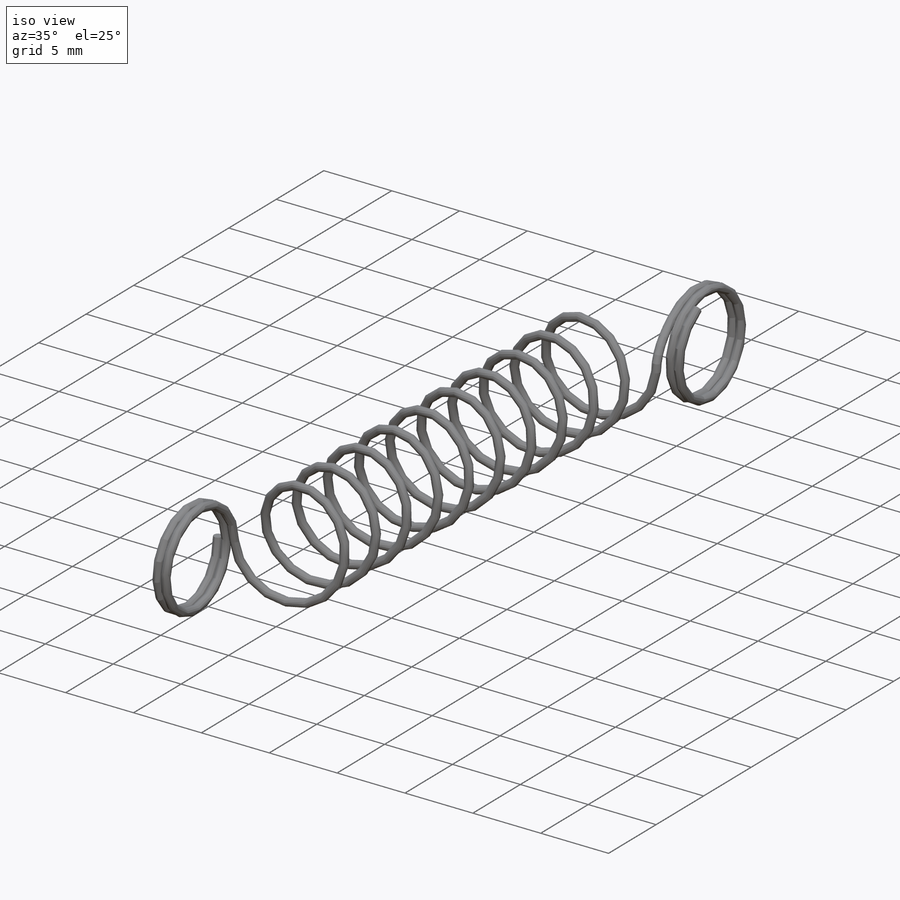
[diagram: iso view]
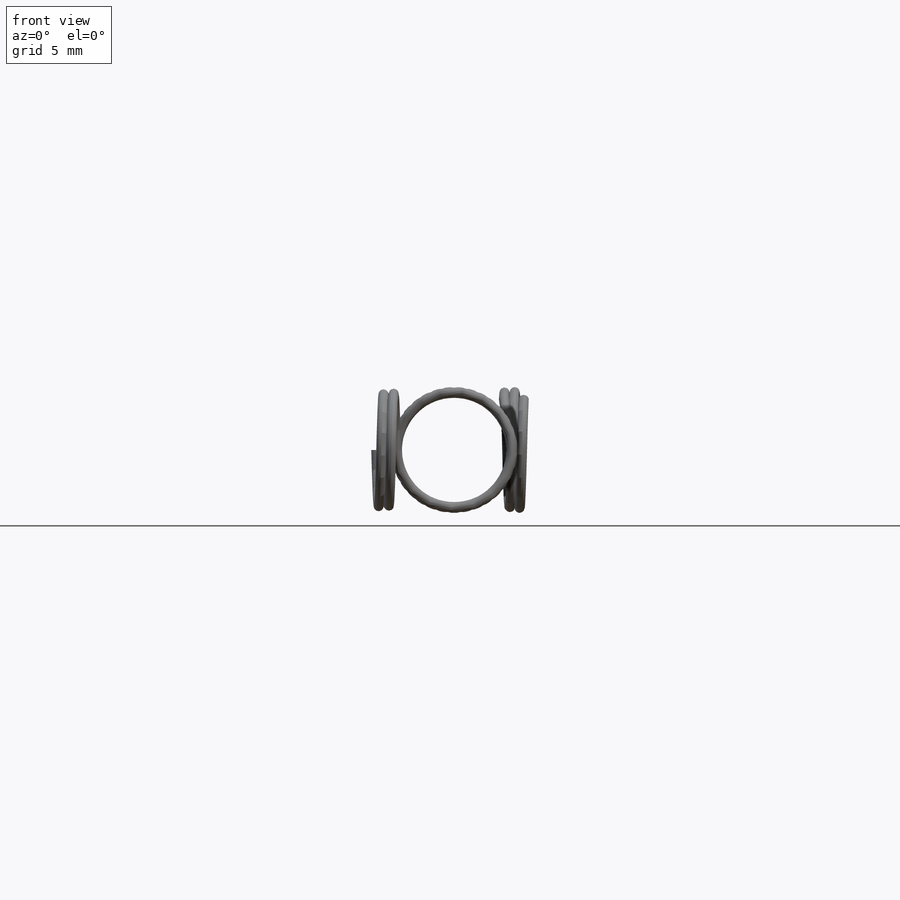
[diagram: front view]
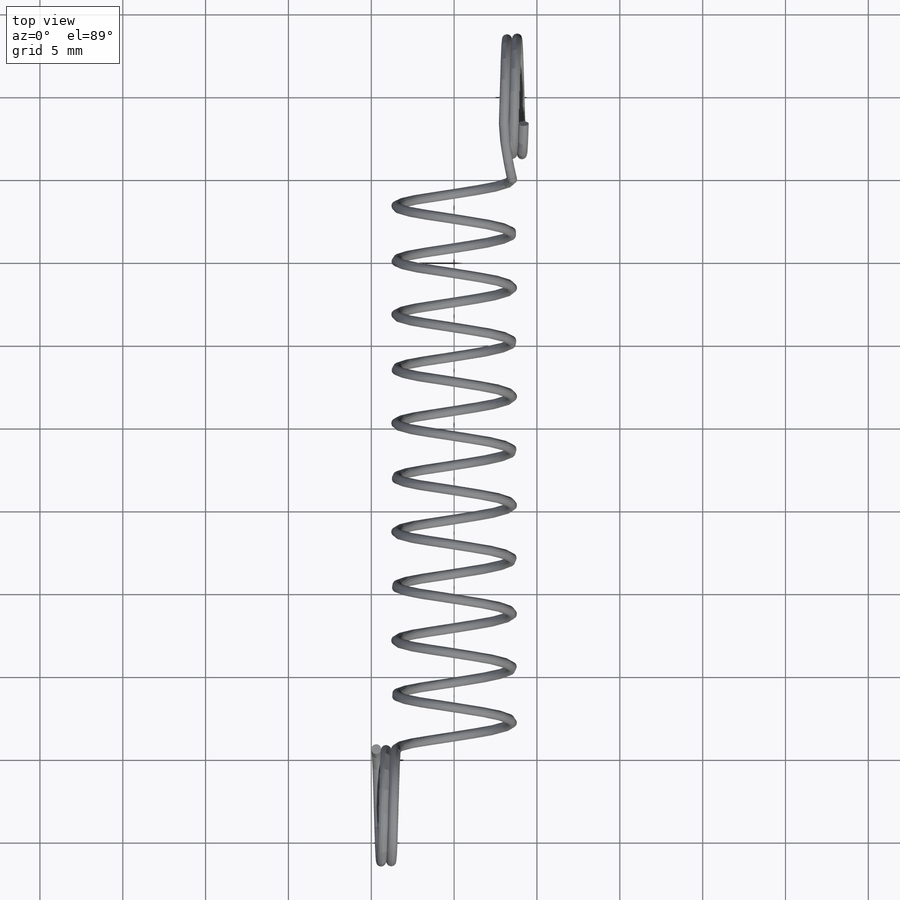
[diagram: top view]
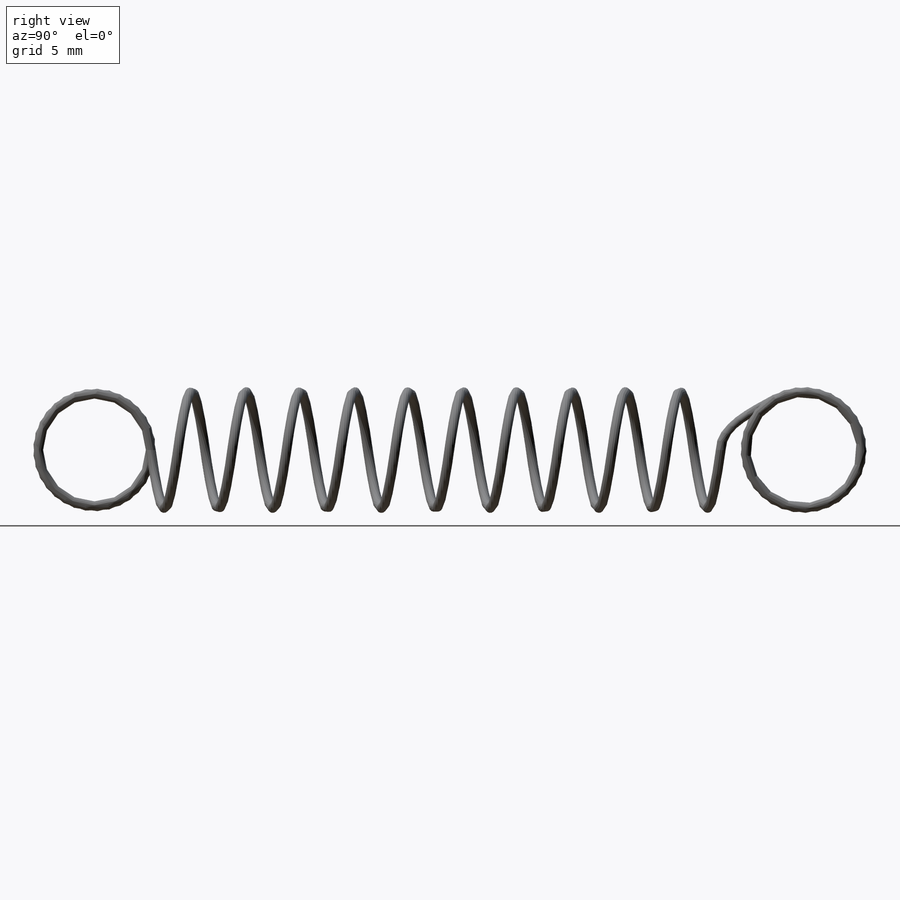
[diagram: right view]
SOLIDWORKS PART (.sldprt)
format: sldprt  version: not decoded by parser v0  size: 645,632 bytes
history: native  units: mm
features: sketch x9, plane x5, sweep x3, material x1, helix x1 (+10 scaffold rows collapsed)
feature tree (29):
  scaffold x10  (default folders/planes/origin — collapsed)
  material  "Matériau <non spécifié>"
  plane  "Face"
  plane  "Dessus"
  plane  "Droite"
  sketch  "Esquisse1"  dims[D1=0.7mm D2=3.65mm]
  helix  "Hélice/Spirale1"  Pitch=34.4mm
  sketch  "Esquisse2"  dims[D1=0.6mm]
  sweep  "Balayage1"
  plane  "Plan1"  Offset=3.5mm
  sketch  "Esquisse3"  dims[D1=7.0mm D2=37.8mm Hélice/Spirale2=0.0 D3=1.2mm D4=0.6mm D5=2000.0mm D7=0.0deg]
  plane  "Plan2"  Offset=3.5mm
  sketch  "Esquisse9"  dims[c1.D1=7.0mm c1.D3=7.0mm c1.D2=5.0mm c1.Hélice/Spirale3=0.0 c2.D3=1.2mm c2.D4=0.6mm c2.D5=2000.0mm c2.D7=119.0deg]
  sketch  "Esquisse10"  dims[D1=0.6mm D2=1.5mm]
  sweep  "Balayage8"
  sketch  "Esquisse4"  dims[D1=0.6mm]
  sweep  "Balayage2"
  sketch  "Esquisse12"  dims[c1.D1=23.0mm c1.D2=22.6mm c2.D1=32.98mm c2.D2=5.0mm c3.D1=43.0mm]
  sketch  "Esquisse13"
  sketch  "Esquisse14"
decode coverage: 8 of 13 modeling features carry decoded parameters
note: suppression state not decoded; provenance and decode notes live in map.json
